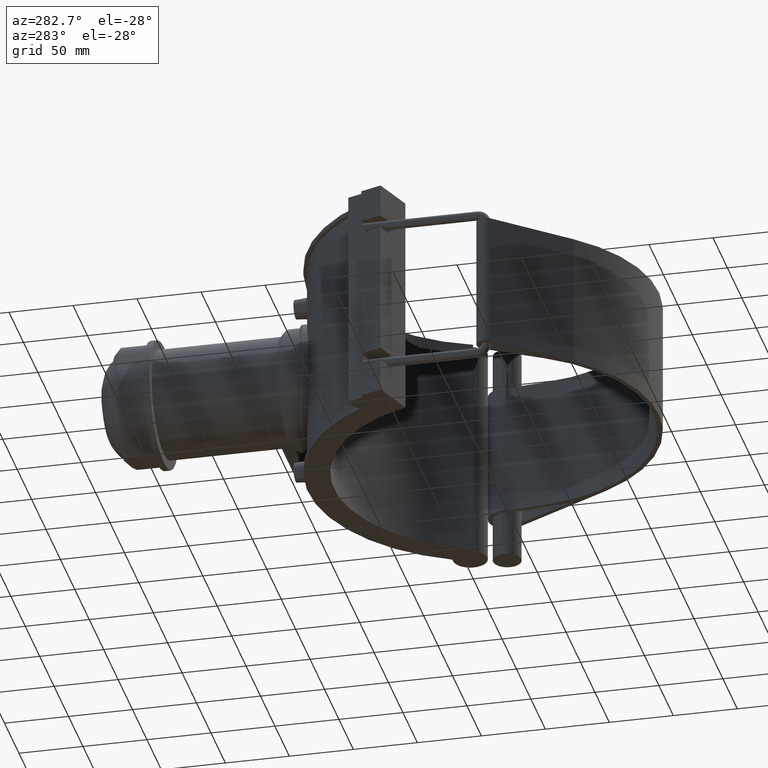
[diagram: clean part render]
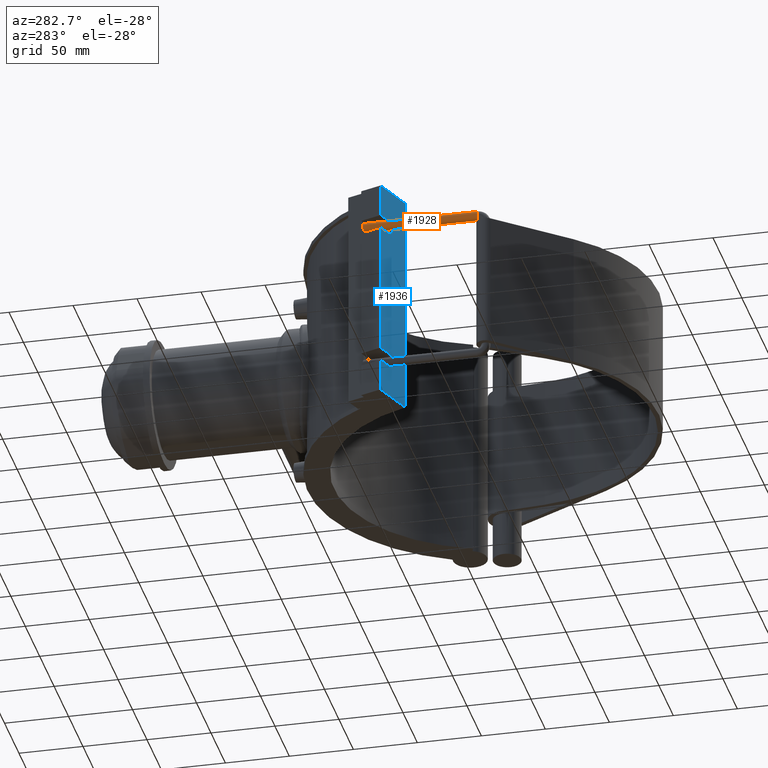
[diagram: same view with the hole feature highlighted: cylindrical wall and planar end face, labeled with their STEP entity ids]
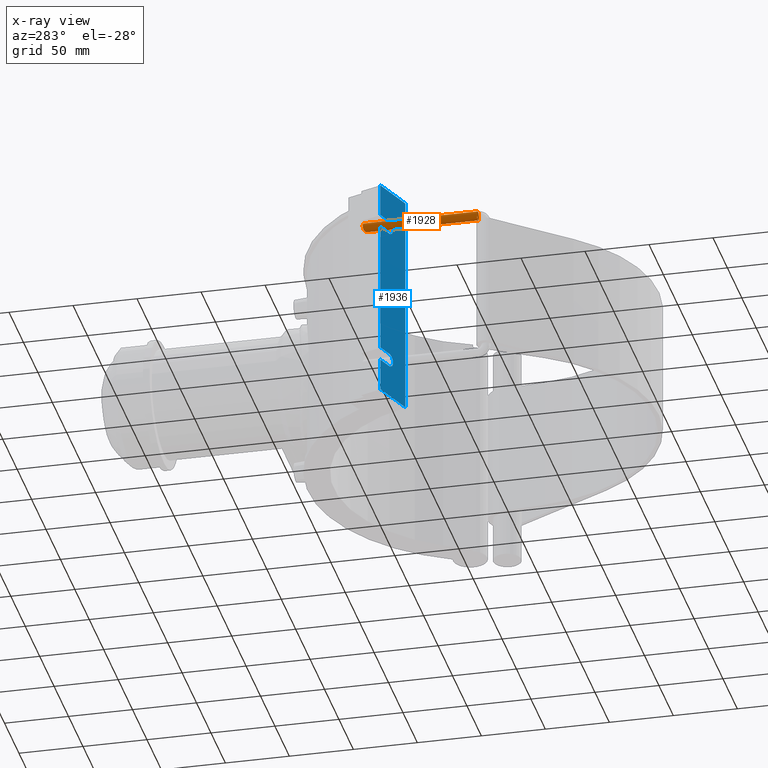
[diagram: x-ray of the same camera — body ghosted, the hole faces saturated]
A machine part, auxiliary view. The highlighted faces form one hole feature of diameter 7 mm: the cylindrical wall (entity #1928, orange) and its adjacent planar end face (entity #1936, blue) — they share a circular edge in the B-rep.
The next image is the same camera in x-ray (body ghosted, the hole faces saturated) — the bore reads through the body.
Wall:
#22=ELLIPSE('',#2105,3.72462220366566,3.49999999999997);
#23=ELLIPSE('',#2107,3.72462220366566,3.49999999999997);
#24=ELLIPSE('',#2108,3.72462220366566,3.49999999999997);
#25=ELLIPSE('',#2109,3.72462220366566,3.49999999999997);
#118=LINE('',#3360,#279);
#119=LINE('',#3365,#280);
#279=VECTOR('',#2511,18.6231110183284);
#280=VECTOR('',#2516,18.3755002761684);
#379=FACE_BOUND('',#647,.T.);
#409=B_SPLINE_CURVE_WITH_KNOTS('',3,(#3367,#3368,#3369,#3370),
 .UNSPECIFIED.,.F.,.F.,(4,4),(1.56519980175904,1.59154776720736),
 .UNSPECIFIED.);
#431=CYLINDRICAL_SURFACE('',#2106,3.49999999999997);
#507=FACE_OUTER_BOUND('',#646,.T.);
#646=EDGE_LOOP('',(#1511,#1512,#1513,#1514,#1515,#1516,#1517));
#647=EDGE_LOOP('',(#1518));
#784=CIRCLE('',#2110,3.49999999999997);
#922=VERTEX_POINT('',#3353);
#923=VERTEX_POINT('',#3354);
#924=VERTEX_POINT('',#3358);
#925=VERTEX_POINT('',#3359);
#926=VERTEX_POINT('',#3362);
#927=VERTEX_POINT('',#3364);
#928=VERTEX_POINT('',#3366);
#929=VERTEX_POINT('',#3372);
#1140=EDGE_CURVE('',#922,#923,#22,.T.);
#1141=EDGE_CURVE('',#924,#925,#118,.T.);
#1142=EDGE_CURVE('',#923,#924,#23,.T.);
#1143=EDGE_CURVE('',#926,#922,#24,.T.);
#1144=EDGE_CURVE('',#927,#926,#119,.T.);
#1145=EDGE_CURVE('',#928,#927,#409,.T.);
#1146=EDGE_CURVE('',#925,#928,#25,.T.);
#1147=EDGE_CURVE('',#929,#929,#784,.T.);
#1511=ORIENTED_EDGE('',*,*,#1141,.F.);
#1512=ORIENTED_EDGE('',*,*,#1142,.F.);
#1513=ORIENTED_EDGE('',*,*,#1140,.F.);
#1514=ORIENTED_EDGE('',*,*,#1143,.F.);
#1515=ORIENTED_EDGE('',*,*,#1144,.F.);
#1516=ORIENTED_EDGE('',*,*,#1145,.F.);
#1517=ORIENTED_EDGE('',*,*,#1146,.F.);
#1518=ORIENTED_EDGE('',*,*,#1147,.F.);
#1928=ADVANCED_FACE('',(#507,#379),#431,.T.);
#2105=AXIS2_PLACEMENT_3D('',#3356,#2507,#2508);
#2106=AXIS2_PLACEMENT_3D('',#3357,#2509,#2510);
#2107=AXIS2_PLACEMENT_3D('',#3361,#2512,#2513);
#2108=AXIS2_PLACEMENT_3D('',#3363,#2514,#2515);
#2109=AXIS2_PLACEMENT_3D('',#3371,#2517,#2518);
#2110=AXIS2_PLACEMENT_3D('',#3373,#2519,#2520);
#2507=DIRECTION('center_axis',(0.342020143325669,0.939692620785908,0.));
#2508=DIRECTION('ref_axis',(-0.939692620785908,0.342020143325669,-2.26097653887931E-17));
#2509=DIRECTION('center_axis',(0.,1.,-6.61065315304083E-17));
#2510=DIRECTION('ref_axis',(-1.,0.,0.));
#2511=DIRECTION('',(0.,-1.,6.61065315304083E-17));
#2512=DIRECTION('center_axis',(0.342020143325669,0.939692620785908,0.));
#2513=DIRECTION('ref_axis',(-0.939692620785908,0.342020143325669,-2.26097653887931E-17));
#2514=DIRECTION('center_axis',(0.342020143325669,0.939692620785908,0.));
#2515=DIRECTION('ref_axis',(-0.939692620785908,0.342020143325669,-2.26097653887931E-17));
#2516=DIRECTION('',(0.,1.,-6.61065315304083E-17));
#2517=DIRECTION('center_axis',(0.342020143325669,0.939692620785908,0.));
#2518=DIRECTION('ref_axis',(-0.939692620785908,0.342020143325669,-2.26097653887931E-17));
#2519=DIRECTION('center_axis',(0.,-1.,-6.12323399573677E-17));
#2520=DIRECTION('ref_axis',(1.,0.,0.));
#3353=CARTESIAN_POINT('',(-141.076542644795,69.9707732942205,56.1247450690441));
#3354=CARTESIAN_POINT('',(-141.076542644795,69.9707732942205,61.7952549309559));
#3356=CARTESIAN_POINT('Origin',(-139.024390243902,69.2238509041176,58.96));
#3357=CARTESIAN_POINT('Origin',(-139.024390243902,-18.84,58.96));
#3358=CARTESIAN_POINT('',(-139.28877632523,69.320079568075,62.45));
#3359=CARTESIAN_POINT('',(-139.28877632523,50.6969685497466,62.45));
#3360=CARTESIAN_POINT('',(-139.28877632523,-18.84,62.45));
#3361=CARTESIAN_POINT('Origin',(-139.024390243902,69.2238509041176,58.96));
#3362=CARTESIAN_POINT('',(-138.760004162575,69.1276222401602,62.45));
#3363=CARTESIAN_POINT('Origin',(-139.024390243902,69.2238509041176,58.96));
#3364=CARTESIAN_POINT('',(-138.760004162575,50.7521219639918,62.45));
#3365=CARTESIAN_POINT('',(-138.760004162575,-18.84,62.45));
#3366=CARTESIAN_POINT('',(-138.748427487453,50.5002976566754,62.449103689639));
#3367=CARTESIAN_POINT('Ctrl Pts',(-138.748427487453,50.5002976566754,62.449103689639));
#3368=CARTESIAN_POINT('Ctrl Pts',(-138.756619081934,50.5802936364105,62.4497515852574));
#3369=CARTESIAN_POINT('Ctrl Pts',(-138.760004162575,50.6642954124974,62.45));
#3370=CARTESIAN_POINT('Ctrl Pts',(-138.760004162575,50.7521219639918,62.45));
#3371=CARTESIAN_POINT('Origin',(-139.024390243902,50.6007398857891,58.96));
#3372=CARTESIAN_POINT('',(-135.524390243902,-18.84,58.96));
#3373=CARTESIAN_POINT('Origin',(-139.024390243902,-18.84,58.96));
End face:
#18=ELLIPSE('',#2098,3.72462220366566,3.49999999999997);
#25=ELLIPSE('',#2109,3.72462220366566,3.49999999999997);
#125=LINE('',#3385,#286);
#133=LINE('',#3406,#294);
#136=LINE('',#3412,#297);
#137=LINE('',#3414,#298);
#138=LINE('',#3416,#299);
#139=LINE('',#3418,#300);
#140=LINE('',#3419,#301);
#141=LINE('',#3423,#302);
#142=LINE('',#3425,#303);
#143=LINE('',#3427,#304);
#286=VECTOR('',#2530,11.7719802793205);
#294=VECTOR('',#2552,11.7719802793212);
#297=VECTOR('',#2557,25.55);
#298=VECTOR('',#2558,34.9999999999998);
#299=VECTOR('',#2559,176.);
#300=VECTOR('',#2560,34.9999999999999);
#301=VECTOR('',#2561,25.55);
#302=VECTOR('',#2564,12.2499999999999);
#303=VECTOR('',#2565,103.9);
#304=VECTOR('',#2566,12.2499999999998);
#515=FACE_OUTER_BOUND('',#655,.T.);
#655=EDGE_LOOP('',(#1547,#1548,#1549,#1550,#1551,#1552,#1553,#1554,#1555,
#1556,#1557,#1558,#1559,#1560));
#787=CIRCLE('',#2121,5.25);
#788=CIRCLE('',#2122,5.25);
#914=VERTEX_POINT('',#3331);
#916=VERTEX_POINT('',#3334);
#925=VERTEX_POINT('',#3359);
#928=VERTEX_POINT('',#3366);
#933=VERTEX_POINT('',#3383);
#939=VERTEX_POINT('',#3405);
#941=VERTEX_POINT('',#3411);
#942=VERTEX_POINT('',#3413);
#943=VERTEX_POINT('',#3415);
#944=VERTEX_POINT('',#3417);
#945=VERTEX_POINT('',#3420);
#946=VERTEX_POINT('',#3422);
#947=VERTEX_POINT('',#3424);
#948=VERTEX_POINT('',#3426);
#1131=EDGE_CURVE('',#916,#914,#18,.T.);
#1146=EDGE_CURVE('',#925,#928,#25,.T.);
#1153=EDGE_CURVE('',#914,#933,#125,.T.);
#1163=EDGE_CURVE('',#939,#925,#133,.T.);
#1166=EDGE_CURVE('',#941,#933,#136,.T.);
#1167=EDGE_CURVE('',#942,#941,#137,.T.);
#1168=EDGE_CURVE('',#943,#942,#138,.T.);
#1169=EDGE_CURVE('',#944,#943,#139,.T.);
#1170=EDGE_CURVE('',#939,#944,#140,.T.);
#1171=EDGE_CURVE('',#928,#945,#787,.T.);
#1172=EDGE_CURVE('',#945,#946,#141,.T.);
#1173=EDGE_CURVE('',#947,#946,#142,.T.);
#1174=EDGE_CURVE('',#947,#948,#143,.T.);
#1175=EDGE_CURVE('',#948,#916,#788,.T.);
#1547=ORIENTED_EDGE('',*,*,#1131,.T.);
#1548=ORIENTED_EDGE('',*,*,#1153,.T.);
#1549=ORIENTED_EDGE('',*,*,#1166,.F.);
#1550=ORIENTED_EDGE('',*,*,#1167,.F.);
#1551=ORIENTED_EDGE('',*,*,#1168,.F.);
#1552=ORIENTED_EDGE('',*,*,#1169,.F.);
#1553=ORIENTED_EDGE('',*,*,#1170,.F.);
#1554=ORIENTED_EDGE('',*,*,#1163,.T.);
#1555=ORIENTED_EDGE('',*,*,#1146,.T.);
#1556=ORIENTED_EDGE('',*,*,#1171,.T.);
#1557=ORIENTED_EDGE('',*,*,#1172,.T.);
#1558=ORIENTED_EDGE('',*,*,#1173,.F.);
#1559=ORIENTED_EDGE('',*,*,#1174,.T.);
#1560=ORIENTED_EDGE('',*,*,#1175,.T.);
#1840=PLANE('',#2120);
#1936=ADVANCED_FACE('',(#515),#1840,.F.);
#2098=AXIS2_PLACEMENT_3D('',#3335,#2490,#2491);
#2109=AXIS2_PLACEMENT_3D('',#3371,#2517,#2518);
#2120=AXIS2_PLACEMENT_3D('',#3410,#2555,#2556);
#2121=AXIS2_PLACEMENT_3D('',#3421,#2562,#2563);
#2122=AXIS2_PLACEMENT_3D('',#3428,#2567,#2568);
#2490=DIRECTION('center_axis',(0.342020143325669,0.939692620785908,0.));
#2491=DIRECTION('ref_axis',(-0.939692620785908,0.342020143325669,-2.26097653887931E-17));
#2517=DIRECTION('center_axis',(0.342020143325669,0.939692620785908,0.));
#2518=DIRECTION('ref_axis',(-0.939692620785908,0.342020143325669,-2.26097653887931E-17));
#2530=DIRECTION('',(-0.939692620785908,0.342020143325669,1.02963983255052E-17));
#2552=DIRECTION('',(0.939692620785908,-0.342020143325669,1.91562333424523E-16));
#2555=DIRECTION('center_axis',(0.342020143325669,0.939692620785908,0.));
#2556=DIRECTION('ref_axis',(0.939692620785909,-0.342020143325669,0.));
#2557=DIRECTION('',(0.,0.,1.));
#2558=DIRECTION('',(-0.939692620785908,0.342020143325669,0.));
#2559=DIRECTION('',(0.,0.,-1.));
#2560=DIRECTION('',(0.939692620785908,-0.342020143325669,0.));
#2561=DIRECTION('',(0.,0.,1.));
#2562=DIRECTION('center_axis',(0.342020143325669,0.939692620785908,0.));
#2563=DIRECTION('ref_axis',(0.939692620785908,-0.342020143325669,-7.75826422421813E-17));
#2564=DIRECTION('',(-0.939692620785908,0.342020143325669,7.75826422421813E-17));
#2565=DIRECTION('',(0.,0.,1.));
#2566=DIRECTION('',(0.939692620785908,-0.342020143325669,-1.02963983255052E-17));
#2567=DIRECTION('center_axis',(0.342020143325669,0.939692620785908,0.));
#2568=DIRECTION('ref_axis',(0.939692620785908,-0.342020143325669,-7.75826422421813E-17));
#3331=CARTESIAN_POINT('',(-139.28877632523,50.6969685497468,-62.45));
#3334=CARTESIAN_POINT('',(-138.748427487452,50.5002976566752,-62.449103689639));
#3335=CARTESIAN_POINT('Origin',(-139.024390243902,50.6007398857891,-58.96));
#3359=CARTESIAN_POINT('',(-139.28877632523,50.6969685497466,62.45));
#3366=CARTESIAN_POINT('',(-138.748427487453,50.5002976566754,62.449103689639));
#3371=CARTESIAN_POINT('Origin',(-139.024390243902,50.6007398857891,58.96));
#3383=CARTESIAN_POINT('',(-150.350819325745,54.723222932107,-62.45));
#3385=CARTESIAN_POINT('',(-137.711953576175,50.1230520043768,-62.45));
#3405=CARTESIAN_POINT('',(-150.350819325745,54.723222932107,62.45));
#3406=CARTESIAN_POINT('',(-168.72181006211,61.4097167341239,62.45));
#3410=CARTESIAN_POINT('Origin',(-136.584322431232,49.712627832386,88.));
#3411=CARTESIAN_POINT('',(-150.350819325745,54.7232229321069,-88.));
#3412=CARTESIAN_POINT('',(-150.350819325745,54.7232229321069,-88.));
#3413=CARTESIAN_POINT('',(-117.461577598239,42.7525179157086,-88.));
#3414=CARTESIAN_POINT('',(-135.969639232124,49.4889014444071,-88.));
#3415=CARTESIAN_POINT('',(-117.461577598239,42.7525179157086,88.));
#3416=CARTESIAN_POINT('',(-117.461577598239,42.7525179157086,0.));
#3417=CARTESIAN_POINT('',(-150.350819325745,54.7232229321069,88.));
#3418=CARTESIAN_POINT('',(-135.969639232124,49.4889014444071,88.));
#3419=CARTESIAN_POINT('',(-150.350819325745,54.7232229321069,-88.));
#3420=CARTESIAN_POINT('',(-138.839584721118,50.5334761763676,51.95));
#3421=CARTESIAN_POINT('Origin',(-138.839584721118,50.5334761763676,57.2));
#3422=CARTESIAN_POINT('',(-150.350819325745,54.723222932107,51.95));
#3423=CARTESIAN_POINT('',(-137.711953576175,50.1230520043768,51.95));
#3424=CARTESIAN_POINT('',(-150.350819325745,54.723222932107,-51.95));
#3425=CARTESIAN_POINT('',(-150.350819325745,54.7232229321069,-88.));
#3426=CARTESIAN_POINT('',(-138.839584721118,50.5334761763676,-51.95));
#3427=CARTESIAN_POINT('',(-168.72181006211,61.4097167341239,-51.95));
#3428=CARTESIAN_POINT('Origin',(-138.839584721118,50.5334761763676,-57.2));